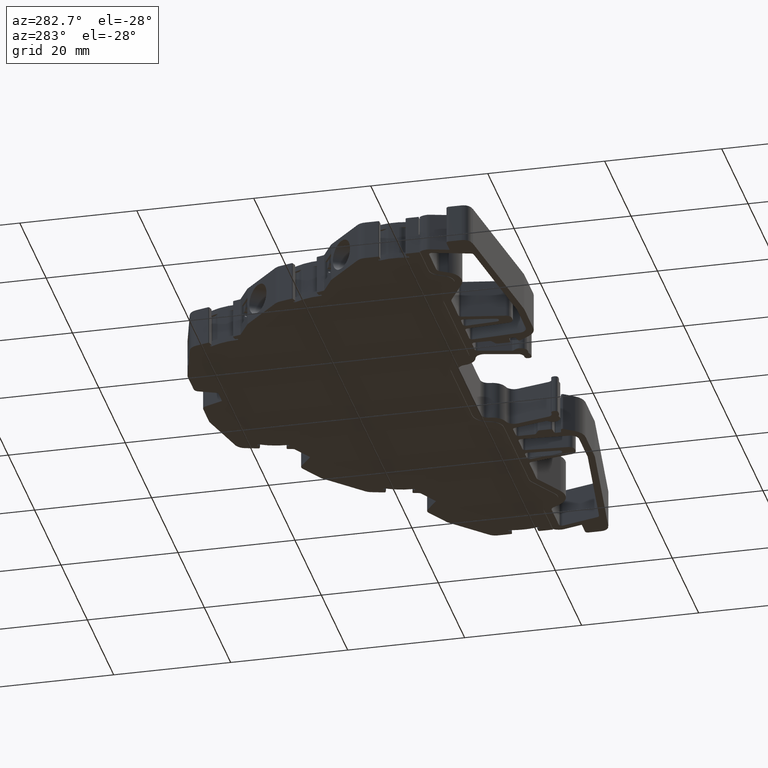
[diagram: clean part render]
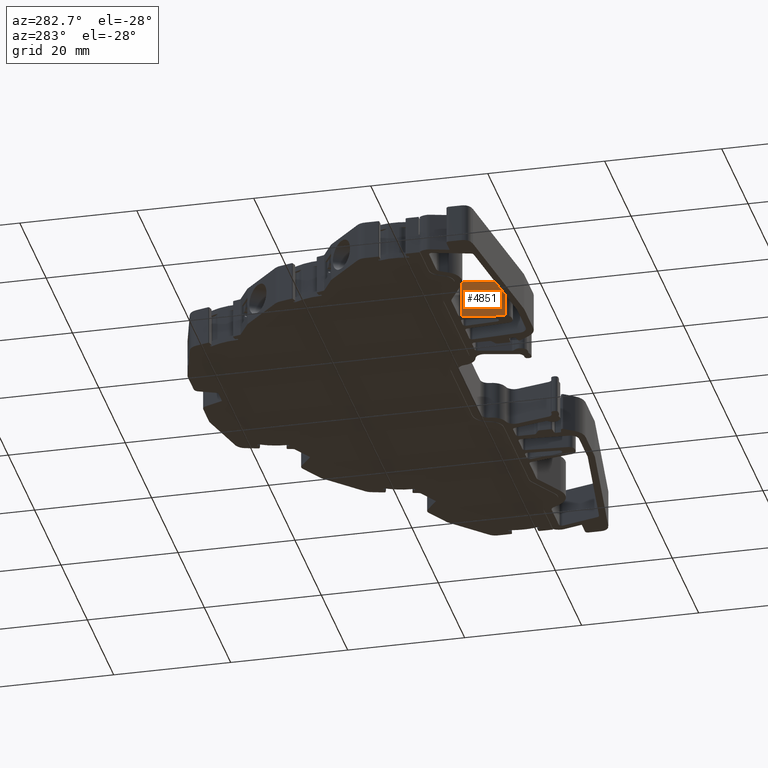
[diagram: same view with one face highlighted and labeled with its STEP entity id]
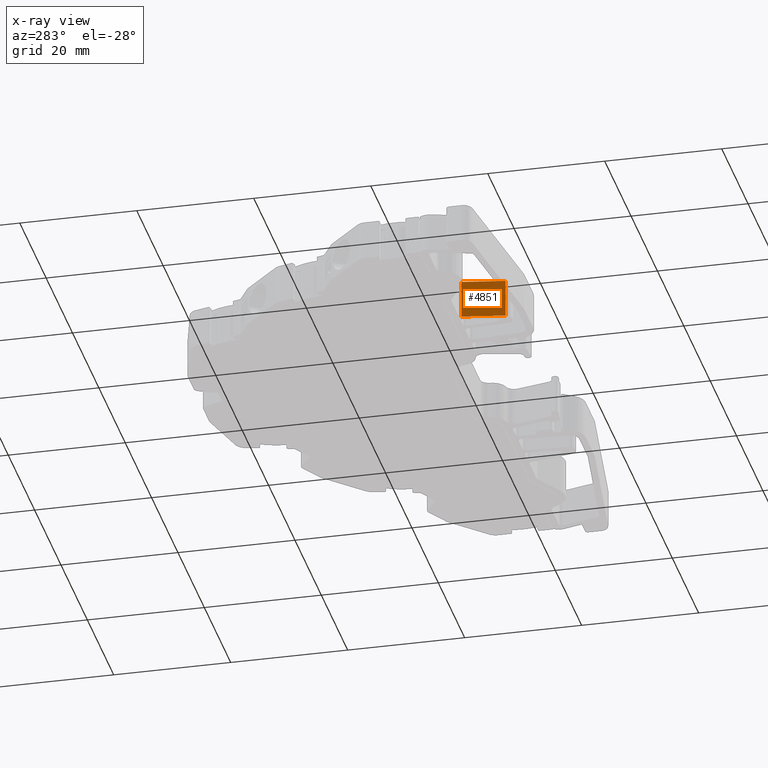
[diagram: x-ray of the same camera — body ghosted, the highlighted face saturated]
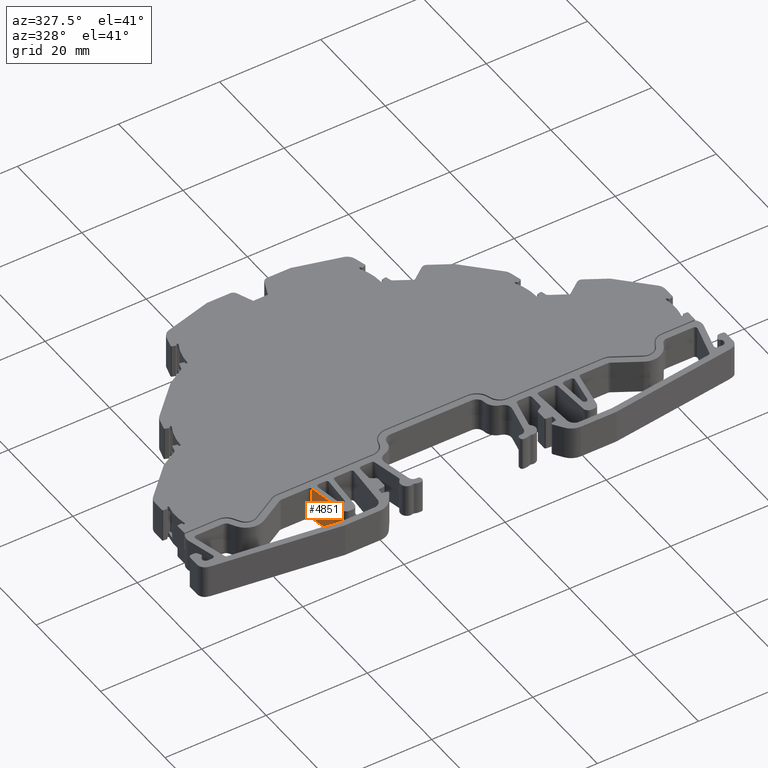
[diagram: same view with one face highlighted and labeled with its STEP entity id]
A machine part, auxiliary view. The second image highlights one B-rep face of the part: STEP entity #4851.
The next image is the same camera in x-ray: the body ghosted, the highlighted face saturated — about 0% of this face is hidden behind the body in this view.
A second angle (auxiliary view) of the same face is appended — the face is thin or edge-on in the first view.
In plain terms, the highlighted planar face has unit normal (-0.9848, -0.1736, 0).
Its self-contained STEP definition (entity closure, byte-faithful):
#783 = CARTESIAN_POINT ( 'NONE',  ( 233.4390414640285200, 8.979945934430741500, -0.3500000000000000300 ) ) ;
#913 = VERTEX_POINT ( 'NONE', #2916 ) ;
#964 = VERTEX_POINT ( 'NONE', #783 ) ;
#2916 = CARTESIAN_POINT ( 'NONE',  ( 232.1588586074530000, 16.24047457420825000, -0.3500000000000000300 ) ) ;
#3392 = LINE ( 'NONE', #3439, #22307 ) ;
#3439 = CARTESIAN_POINT ( 'NONE',  ( 233.4390414640285200, 8.979945934430741500, 6.200000000000000200 ) ) ;
#3457 = DIRECTION ( 'NONE',  ( -0.1736423583668545700, 0.9848087790940922600, 0.0000000000000000000 ) ) ;
#4112 = CARTESIAN_POINT ( 'NONE',  ( 233.4390414640285200, 8.979945934430741500, -0.3500000000000000300 ) ) ;
#4130 = DIRECTION ( 'NONE',  ( 0.1736423583668545700, -0.9848087790940922600, 0.0000000000000000000 ) ) ;
#4152 = LINE ( 'NONE', #4112, #22312 ) ;
#4851 = ADVANCED_FACE ( 'NONE', ( #8914 ), #8894, .T. ) ;
#5093 = EDGE_CURVE ( 'NONE', #21887, #21878, #3392, .T. ) ;
#5162 = EDGE_CURVE ( 'NONE', #913, #964, #4152, .T. ) ;
#5970 = EDGE_CURVE ( 'NONE', #21878, #913, #15777, .T. ) ;
#5989 = EDGE_CURVE ( 'NONE', #21887, #964, #15834, .T. ) ;
#6818 = CARTESIAN_POINT ( 'NONE',  ( 233.4390414640285200, 8.979945934430741500, 6.200000000000000200 ) ) ;
#6852 = CARTESIAN_POINT ( 'NONE',  ( 232.1588586074530000, 16.24047457420825000, 6.200000000000000200 ) ) ;
#8894 = PLANE ( 'NONE',  #22760 ) ;
#8898 = DIRECTION ( 'NONE',  ( 0.1736423583668545700, -0.9848087790940923700, 0.0000000000000000000 ) ) ;
#8908 = CARTESIAN_POINT ( 'NONE',  ( 233.4390414640285200, 8.979945934430741500, 2.899999999999999900 ) ) ;
#8914 = FACE_OUTER_BOUND ( 'NONE', #21956, .T. ) ;
#8917 = DIRECTION ( 'NONE',  ( -0.9848087790940923700, -0.1736423583668545700, 0.0000000000000000000 ) ) ;
#13476 = VECTOR ( 'NONE', #15783, 1000.000000000000000 ) ;
#13498 = VECTOR ( 'NONE', #15828, 1000.000000000000000 ) ;
#15774 = CARTESIAN_POINT ( 'NONE',  ( 232.1588586074530000, 16.24047457420825000, 2.899999999999999900 ) ) ;
#15777 = LINE ( 'NONE', #15774, #13476 ) ;
#15783 = DIRECTION ( 'NONE',  ( 0.0000000000000000000, 0.0000000000000000000, -1.000000000000000000 ) ) ;
#15827 = CARTESIAN_POINT ( 'NONE',  ( 233.4390414640285200, 8.979945934430741500, 2.899999999999999900 ) ) ;
#15828 = DIRECTION ( 'NONE',  ( 0.0000000000000000000, 0.0000000000000000000, -1.000000000000000000 ) ) ;
#15834 = LINE ( 'NONE', #15827, #13498 ) ;
#19198 = ORIENTED_EDGE ( 'NONE', *, *, #5970, .T. ) ;
#19250 = ORIENTED_EDGE ( 'NONE', *, *, #5093, .T. ) ;
#19267 = ORIENTED_EDGE ( 'NONE', *, *, #5989, .F. ) ;
#19279 = ORIENTED_EDGE ( 'NONE', *, *, #5162, .T. ) ;
#21878 = VERTEX_POINT ( 'NONE', #6852 ) ;
#21887 = VERTEX_POINT ( 'NONE', #6818 ) ;
#21956 = EDGE_LOOP ( 'NONE', ( #19198, #19279, #19267, #19250 ) ) ;
#22307 = VECTOR ( 'NONE', #3457, 1000.000000000000100 ) ;
#22312 = VECTOR ( 'NONE', #4130, 1000.000000000000100 ) ;
#22760 = AXIS2_PLACEMENT_3D ( 'NONE', #8908, #8917, #8898 ) ;